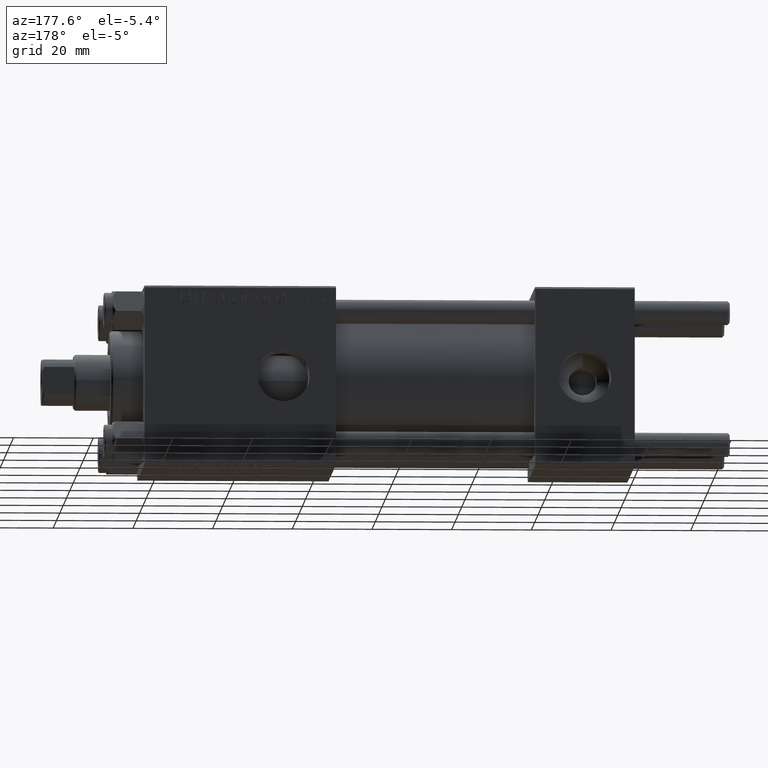
[diagram: clean part render]
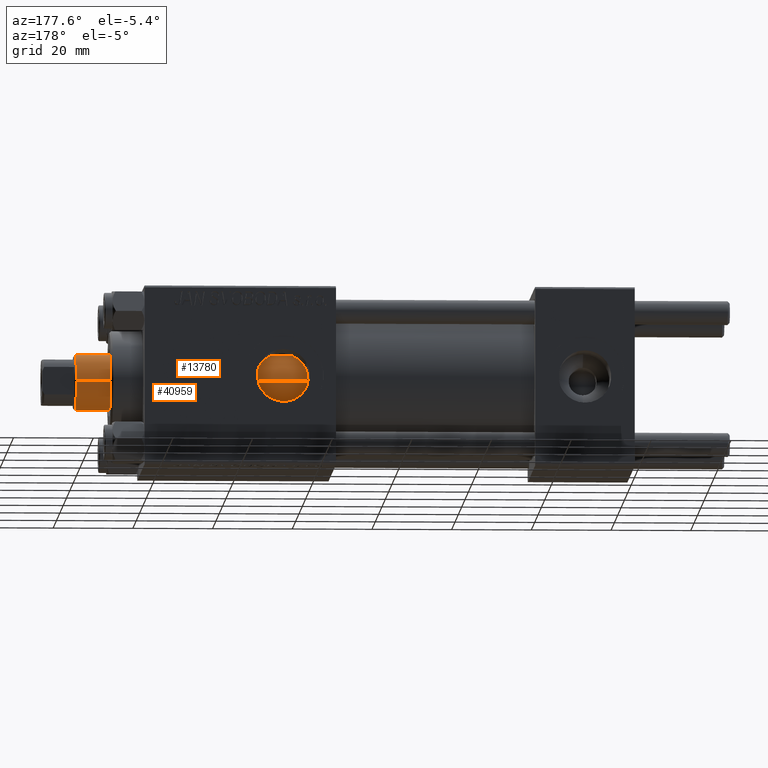
[diagram: same view with one multi-face feature highlighted, each face labeled with its STEP entity id]
A machine part, auxiliary view. The highlighted faces form ONE feature: a constant-radius fillet chain: 2 tangent blend faces with common blend radius 7 mm. The faces share edges in the B-rep.
Their STEP definitions:
[1] entity #40959 (Cylinder):
#1126 = CARTESIAN_POINT ( 'NONE',  ( 0.000000000000000000, 0.000000000000000000, 30.00000000000000000 ) ) ;
#3421 = DIRECTION ( 'NONE',  ( 1.000000000000000000, 0.000000000000000000, 0.000000000000000000 ) ) ;
#3718 = FACE_OUTER_BOUND ( 'NONE', #43920, .T. ) ;
#4211 = DIRECTION ( 'NONE',  ( -0.000000000000000000, -0.000000000000000000, -1.000000000000000000 ) ) ;
#5029 = VERTEX_POINT ( 'NONE', #24460 ) ;
#7731 = ORIENTED_EDGE ( 'NONE', *, *, #46725, .T. ) ;
#8694 = EDGE_CURVE ( 'NONE', #26242, #12258, #36140, .T. ) ;
#9929 = AXIS2_PLACEMENT_3D ( 'NONE', #1126, #40284, #17000 ) ;
#12258 = VERTEX_POINT ( 'NONE', #40099 ) ;
#12390 = CIRCLE ( 'NONE', #9929, 7.000000000000000000 ) ;
#13278 = EDGE_CURVE ( 'NONE', #26242, #23701, #29346, .T. ) ;
#17000 = DIRECTION ( 'NONE',  ( 1.000000000000000000, 0.000000000000000000, 0.000000000000000000 ) ) ;
#18790 = ORIENTED_EDGE ( 'NONE', *, *, #32784, .T. ) ;
#19878 = CYLINDRICAL_SURFACE ( 'NONE', #42184, 7.000000000000000000 ) ;
#22873 = DIRECTION ( 'NONE',  ( 0.000000000000000000, 0.000000000000000000, -1.000000000000000000 ) ) ;
#23125 = CARTESIAN_POINT ( 'NONE',  ( 0.000000000000000000, 0.000000000000000000, 114.4999999999999858 ) ) ;
#23701 = VERTEX_POINT ( 'NONE', #26779 ) ;
#24452 = DIRECTION ( 'NONE',  ( -0.000000000000000000, -0.000000000000000000, -1.000000000000000000 ) ) ;
#24460 = CARTESIAN_POINT ( 'NONE',  ( 7.000000000000000000, 8.572527594031473190E-16, 30.00000000000000000 ) ) ;
#26242 = VERTEX_POINT ( 'NONE', #26512 ) ;
#26512 = CARTESIAN_POINT ( 'NONE',  ( -7.000000000000000000, 0.000000000000000000, 114.4999999999999858 ) ) ;
#26779 = CARTESIAN_POINT ( 'NONE',  ( 7.000000000000000000, 8.572527594031473190E-16, 114.4999999999999858 ) ) ;
#28244 = CARTESIAN_POINT ( 'NONE',  ( 7.000000000000000000, 8.572527594031473190E-16, 115.0000000000000000 ) ) ;
#29346 = CIRCLE ( 'NONE', #44694, 7.000000000000000000 ) ;
#31056 = LINE ( 'NONE', #28244, #41144 ) ;
#32784 = EDGE_CURVE ( 'NONE', #23701, #5029, #31056, .T. ) ;
#33932 = ORIENTED_EDGE ( 'NONE', *, *, #8694, .F. ) ;
#36140 = LINE ( 'NONE', #47284, #47919 ) ;
#39495 = ORIENTED_EDGE ( 'NONE', *, *, #13278, .T. ) ;
#40099 = CARTESIAN_POINT ( 'NONE',  ( -7.000000000000000000, 0.000000000000000000, 30.00000000000000000 ) ) ;
#40284 = DIRECTION ( 'NONE',  ( 0.000000000000000000, 0.000000000000000000, 1.000000000000000000 ) ) ;
#40959 = ADVANCED_FACE ( 'NONE', ( #3718 ), #19878, .T. ) ;
#41144 = VECTOR ( 'NONE', #24452, 1000.000000000000000 ) ;
#42184 = AXIS2_PLACEMENT_3D ( 'NONE', #43156, #4211, #49991 ) ;
#43156 = CARTESIAN_POINT ( 'NONE',  ( 0.000000000000000000, 0.000000000000000000, 115.0000000000000000 ) ) ;
#43920 = EDGE_LOOP ( 'NONE', ( #39495, #18790, #7731, #33932 ) ) ;
#44694 = AXIS2_PLACEMENT_3D ( 'NONE', #23125, #22873, #3421 ) ;
#46725 = EDGE_CURVE ( 'NONE', #5029, #12258, #12390, .T. ) ;
#47284 = CARTESIAN_POINT ( 'NONE',  ( -7.000000000000000000, 0.000000000000000000, 115.0000000000000000 ) ) ;
#47919 = VECTOR ( 'NONE', #48019, 1000.000000000000000 ) ;
#48019 = DIRECTION ( 'NONE',  ( -0.000000000000000000, -0.000000000000000000, -1.000000000000000000 ) ) ;
#49991 = DIRECTION ( 'NONE',  ( -1.000000000000000000, 0.000000000000000000, 0.000000000000000000 ) ) ;
[2] entity #13780 (Cylinder):
#287 = AXIS2_PLACEMENT_3D ( 'NONE', #38858, #3483, #15592 ) ;
#392 = ORIENTED_EDGE ( 'NONE', *, *, #12980, .T. ) ;
#512 = CARTESIAN_POINT ( 'NONE',  ( 0.000000000000000000, 0.000000000000000000, 114.4999999999999858 ) ) ;
#1078 = FACE_OUTER_BOUND ( 'NONE', #32820, .T. ) ;
#3483 = DIRECTION ( 'NONE',  ( 0.000000000000000000, 0.000000000000000000, 1.000000000000000000 ) ) ;
#5029 = VERTEX_POINT ( 'NONE', #24460 ) ;
#8694 = EDGE_CURVE ( 'NONE', #26242, #12258, #36140, .T. ) ;
#9083 = AXIS2_PLACEMENT_3D ( 'NONE', #512, #31349, #23760 ) ;
#11240 = ORIENTED_EDGE ( 'NONE', *, *, #8694, .T. ) ;
#11926 = CYLINDRICAL_SURFACE ( 'NONE', #12376, 7.000000000000000000 ) ;
#12258 = VERTEX_POINT ( 'NONE', #40099 ) ;
#12376 = AXIS2_PLACEMENT_3D ( 'NONE', #38740, #35220, #27114 ) ;
#12980 = EDGE_CURVE ( 'NONE', #23701, #26242, #24466, .T. ) ;
#13780 = ADVANCED_FACE ( 'NONE', ( #1078 ), #11926, .T. ) ;
#15592 = DIRECTION ( 'NONE',  ( 1.000000000000000000, 0.000000000000000000, 0.000000000000000000 ) ) ;
#23701 = VERTEX_POINT ( 'NONE', #26779 ) ;
#23760 = DIRECTION ( 'NONE',  ( 1.000000000000000000, 0.000000000000000000, 0.000000000000000000 ) ) ;
#24452 = DIRECTION ( 'NONE',  ( -0.000000000000000000, -0.000000000000000000, -1.000000000000000000 ) ) ;
#24460 = CARTESIAN_POINT ( 'NONE',  ( 7.000000000000000000, 8.572527594031473190E-16, 30.00000000000000000 ) ) ;
#24466 = CIRCLE ( 'NONE', #9083, 7.000000000000000000 ) ;
#26242 = VERTEX_POINT ( 'NONE', #26512 ) ;
#26295 = ORIENTED_EDGE ( 'NONE', *, *, #47203, .T. ) ;
#26512 = CARTESIAN_POINT ( 'NONE',  ( -7.000000000000000000, 0.000000000000000000, 114.4999999999999858 ) ) ;
#26779 = CARTESIAN_POINT ( 'NONE',  ( 7.000000000000000000, 8.572527594031473190E-16, 114.4999999999999858 ) ) ;
#27114 = DIRECTION ( 'NONE',  ( -1.000000000000000000, 0.000000000000000000, 0.000000000000000000 ) ) ;
#28244 = CARTESIAN_POINT ( 'NONE',  ( 7.000000000000000000, 8.572527594031473190E-16, 115.0000000000000000 ) ) ;
#31056 = LINE ( 'NONE', #28244, #41144 ) ;
#31349 = DIRECTION ( 'NONE',  ( 0.000000000000000000, 0.000000000000000000, -1.000000000000000000 ) ) ;
#31360 = ORIENTED_EDGE ( 'NONE', *, *, #32784, .F. ) ;
#32784 = EDGE_CURVE ( 'NONE', #23701, #5029, #31056, .T. ) ;
#32820 = EDGE_LOOP ( 'NONE', ( #31360, #392, #11240, #26295 ) ) ;
#35220 = DIRECTION ( 'NONE',  ( -0.000000000000000000, -0.000000000000000000, -1.000000000000000000 ) ) ;
#36140 = LINE ( 'NONE', #47284, #47919 ) ;
#38740 = CARTESIAN_POINT ( 'NONE',  ( 0.000000000000000000, 0.000000000000000000, 115.0000000000000000 ) ) ;
#38858 = CARTESIAN_POINT ( 'NONE',  ( 0.000000000000000000, 0.000000000000000000, 30.00000000000000000 ) ) ;
#40099 = CARTESIAN_POINT ( 'NONE',  ( -7.000000000000000000, 0.000000000000000000, 30.00000000000000000 ) ) ;
#41144 = VECTOR ( 'NONE', #24452, 1000.000000000000000 ) ;
#47203 = EDGE_CURVE ( 'NONE', #12258, #5029, #49547, .T. ) ;
#47284 = CARTESIAN_POINT ( 'NONE',  ( -7.000000000000000000, 0.000000000000000000, 115.0000000000000000 ) ) ;
#47919 = VECTOR ( 'NONE', #48019, 1000.000000000000000 ) ;
#48019 = DIRECTION ( 'NONE',  ( -0.000000000000000000, -0.000000000000000000, -1.000000000000000000 ) ) ;
#49547 = CIRCLE ( 'NONE', #287, 7.000000000000000000 ) ;